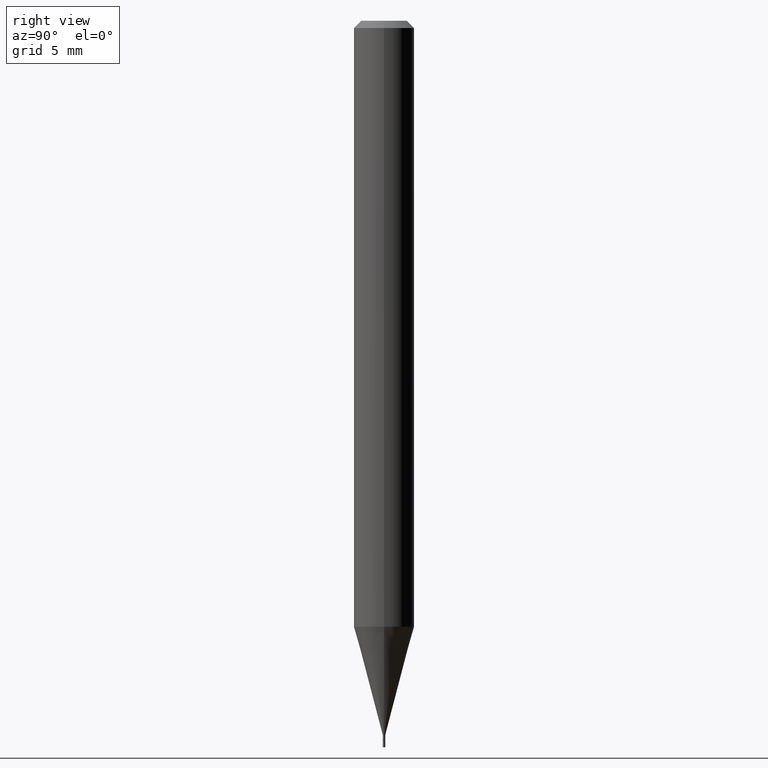
[diagram: clean part render]
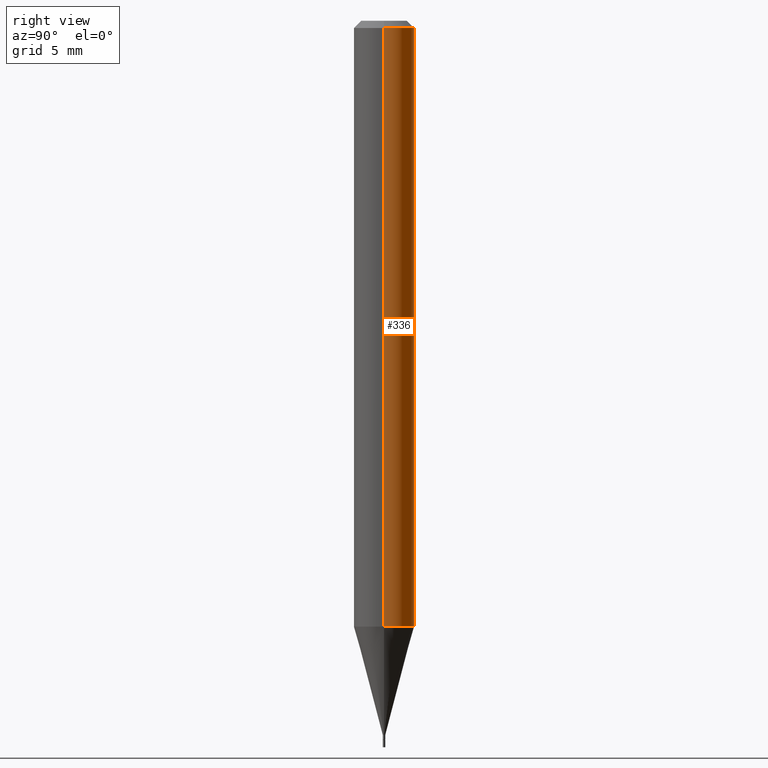
[diagram: same view with one face highlighted and labeled with its STEP entity id]
A machine part, right view. The second image highlights one B-rep face of the part: STEP entity #336.
In plain terms, the highlighted cylindrical surface (edge-blend (fillet) strip) has radius 1.5875 mm, axis along (-0, 0, 1).
Its self-contained STEP definition (entity closure, byte-faithful):
#6 = ORIENTED_EDGE ( 'NONE', *, *, #362, .T. ) ;
#8 = EDGE_CURVE ( 'NONE', #147, #315, #184, .T. ) ;
#9 = LINE ( 'NONE', #397, #374 ) ;
#12 = CARTESIAN_POINT ( 'NONE',  ( 0.06250000000000000000, -4.804546997134555937E-15, -1.251076951545866844 ) ) ;
#37 = VERTEX_POINT ( 'NONE', #284 ) ;
#52 = CARTESIAN_POINT ( 'NONE',  ( 0.000000000000000000, 0.000000000000000000, 0.000000000000000000 ) ) ;
#60 = CARTESIAN_POINT ( 'NONE',  ( -0.06250000000000000000, 4.440892098500626162E-16, -3.074334431409316114E-30 ) ) ;
#100 = CIRCLE ( 'NONE', #131, 0.06250000000000000000 ) ;
#111 = EDGE_LOOP ( 'NONE', ( #6, #197, #152, #237 ) ) ;
#114 = CARTESIAN_POINT ( 'NONE',  ( 0.06250000000000000000, -4.888073874380388472E-16, -0.01499999999999999944 ) ) ;
#117 = DIRECTION ( 'NONE',  ( -2.445468806185136597E-29, 3.491481338843145583E-15, 1.000000000000000000 ) ) ;
#130 = CARTESIAN_POINT ( 'NONE',  ( -0.06250000000000000000, -1.766152815080843254E-15, -0.01499999999999999944 ) ) ;
#131 = AXIS2_PLACEMENT_3D ( 'NONE', #278, #429, #387 ) ;
#147 = VERTEX_POINT ( 'NONE', #114 ) ;
#152 = ORIENTED_EDGE ( 'NONE', *, *, #8, .F. ) ;
#153 = DIRECTION ( 'NONE',  ( -2.445468806185136877E-29, 3.491481338843145188E-15, 1.000000000000000000 ) ) ;
#155 = VECTOR ( 'NONE', #162, 39.37007874015748143 ) ;
#158 = LINE ( 'NONE', #60, #155 ) ;
#162 = DIRECTION ( 'NONE',  ( -2.445468806185136877E-29, 3.491481338843145188E-15, 1.000000000000000000 ) ) ;
#174 = CARTESIAN_POINT ( 'NONE',  ( 3.668203209277705088E-31, -5.237222008264718399E-17, -0.01499999999999999944 ) ) ;
#184 = CIRCLE ( 'NONE', #213, 0.06250000000000000000 ) ;
#189 = EDGE_CURVE ( 'NONE', #204, #147, #9, .T. ) ;
#194 = FACE_OUTER_BOUND ( 'NONE', #111, .T. ) ;
#197 = ORIENTED_EDGE ( 'NONE', *, *, #255, .T. ) ;
#204 = VERTEX_POINT ( 'NONE', #12 ) ;
#213 = AXIS2_PLACEMENT_3D ( 'NONE', #174, #363, #323 ) ;
#237 = ORIENTED_EDGE ( 'NONE', *, *, #189, .F. ) ;
#255 = EDGE_CURVE ( 'NONE', #37, #315, #158, .T. ) ;
#278 = CARTESIAN_POINT ( 'NONE',  ( 3.059469659142611361E-29, -4.368111829779164268E-15, -1.251076951545866844 ) ) ;
#284 = CARTESIAN_POINT ( 'NONE',  ( -0.06250000000000000000, -3.924022619929102440E-15, -1.251076951545866844 ) ) ;
#315 = VERTEX_POINT ( 'NONE', #130 ) ;
#323 = DIRECTION ( 'NONE',  ( 1.000000000000000000, -6.982962677686266711E-15, 0.000000000000000000 ) ) ;
#336 = ADVANCED_FACE ( 'NONE', ( #194 ), #338, .T. ) ;
#338 = CYLINDRICAL_SURFACE ( 'NONE', #391, 0.06250000000000000000 ) ;
#362 = EDGE_CURVE ( 'NONE', #204, #37, #100, .T. ) ;
#363 = DIRECTION ( 'NONE',  ( -2.445468806185136597E-29, 3.491481338843145583E-15, 1.000000000000000000 ) ) ;
#374 = VECTOR ( 'NONE', #153, 39.37007874015748143 ) ;
#387 = DIRECTION ( 'NONE',  ( 1.000000000000000000, -6.982962677686270655E-15, 0.000000000000000000 ) ) ;
#391 = AXIS2_PLACEMENT_3D ( 'NONE', #52, #117, #405 ) ;
#397 = CARTESIAN_POINT ( 'NONE',  ( 0.06250000000000000000, -4.364351673553916694E-16, 3.047610484872459871E-30 ) ) ;
#405 = DIRECTION ( 'NONE',  ( 1.000000000000000000, -6.982962677686266711E-15, 4.876176775795935793E-29 ) ) ;
#429 = DIRECTION ( 'NONE',  ( -2.445468806185136597E-29, 3.491481338843145583E-15, 1.000000000000000000 ) ) ;